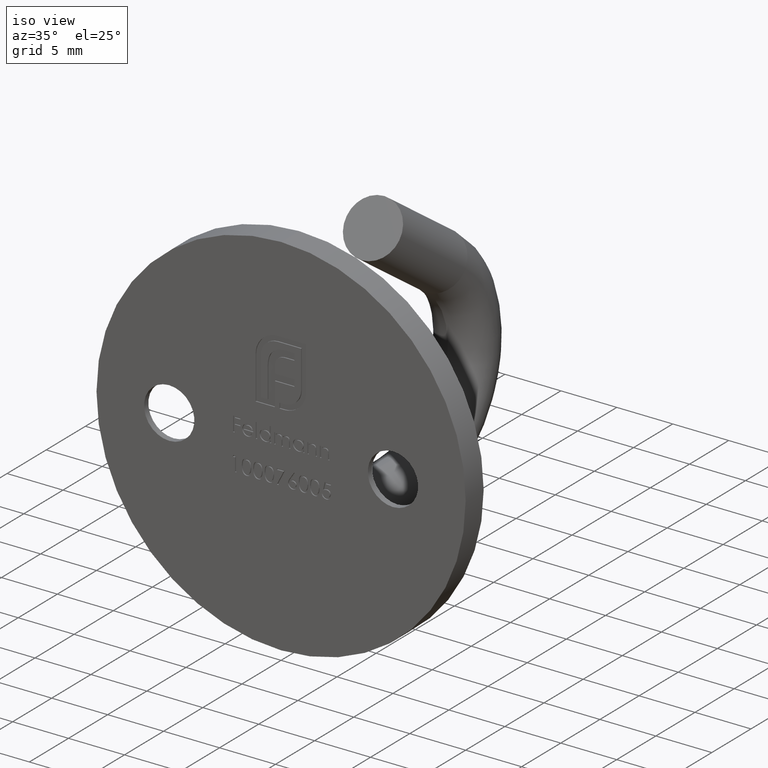
[diagram: clean part render]
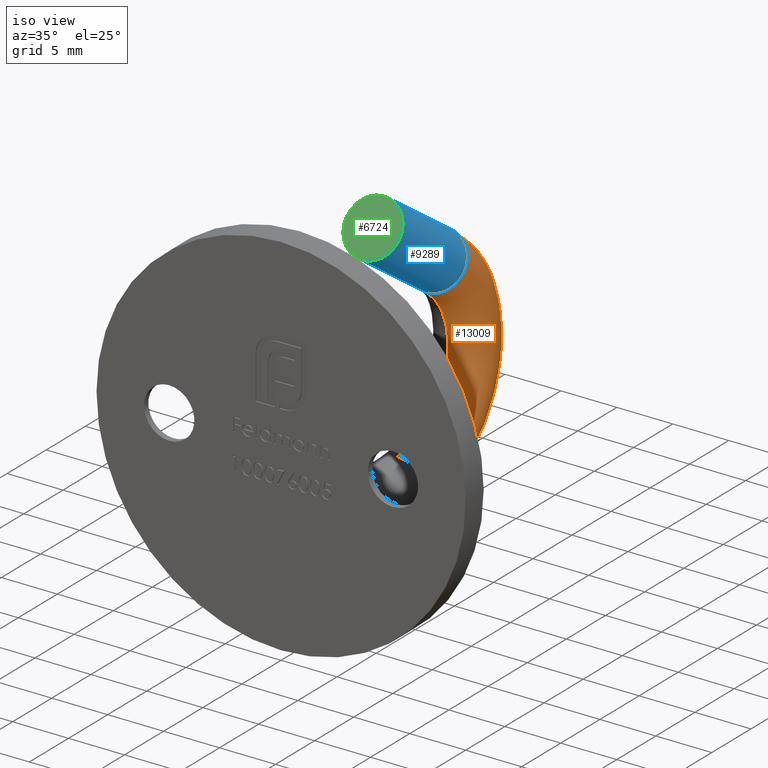
[diagram: same view with three faces highlighted in distinct colors, each labeled with its STEP entity id]
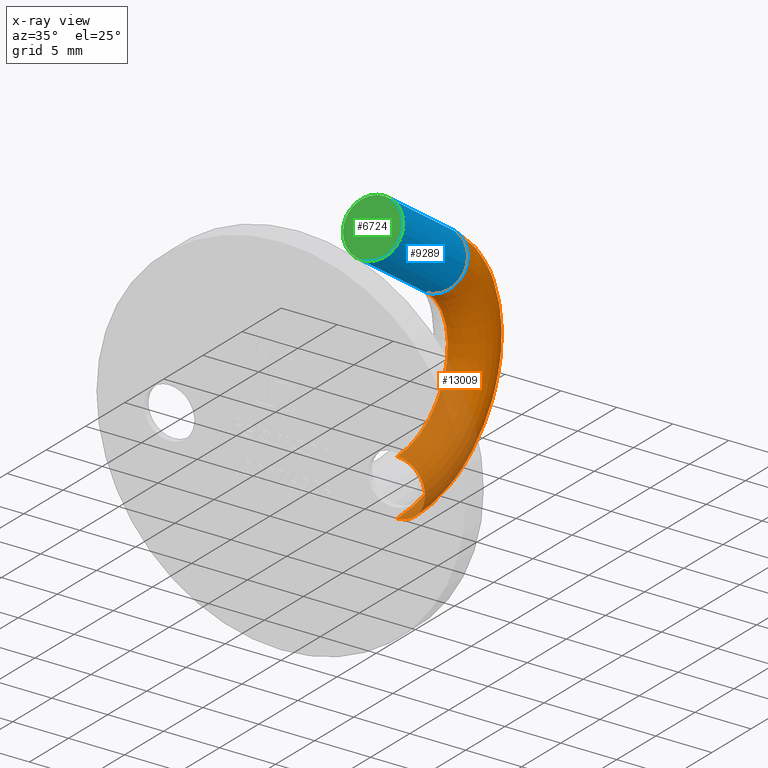
[diagram: x-ray of the same camera — body ghosted, the three highlighted faces saturated]
A machine part, iso view with three faces highlighted in distinct colors.
The next image is the same camera in x-ray (body ghosted, the three faces saturated) — at least one of them is partly hidden behind the body in this view.
Their STEP definitions:

[orange] entity #13009 — the highlighted toroidal blend (fillet) surface has major radius 9 mm and minor (blend) radius 2.5 mm.
#625 = DIRECTION ( 'NONE',  ( 0.000000000000000000, 0.000000000000000000, -1.000000000000000000 ) ) ;
#885 = EDGE_LOOP ( 'NONE', ( #11431, #13315, #15260, #1394 ) ) ;
#1394 = ORIENTED_EDGE ( 'NONE', *, *, #10019, .F. ) ;
#1436 = EDGE_CURVE ( 'NONE', #13294, #2883, #4112, .T. ) ;
#1460 = EDGE_CURVE ( 'NONE', #2883, #8685, #4466, .T. ) ;
#1639 = DIRECTION ( 'NONE',  ( 1.000000000000000000, 0.000000000000000000, 0.000000000000000000 ) ) ;
#2028 = CARTESIAN_POINT ( 'NONE',  ( 3.061616997868383634E-16, 21.39612901803698364, 9.420248509323439379 ) ) ;
#2356 = CARTESIAN_POINT ( 'NONE',  ( 0.000000000000000000, 18.52824683628177382, 5.324488287878466508 ) ) ;
#2377 = DIRECTION ( 'NONE',  ( 1.000000000000000000, 0.000000000000000000, 0.000000000000000000 ) ) ;
#2883 = VERTEX_POINT ( 'NONE', #2028 ) ;
#3658 = AXIS2_PLACEMENT_3D ( 'NONE', #11052, #12047, #4837 ) ;
#3703 = DIRECTION ( 'NONE',  ( 0.000000000000000000, 0.000000000000000000, -1.000000000000000000 ) ) ;
#4112 = CIRCLE ( 'NONE', #11848, 11.50000000000000178 ) ;
#4466 = CIRCLE ( 'NONE', #4838, 2.500000000000000444 ) ;
#4837 = DIRECTION ( 'NONE',  ( 0.000000000000000000, 0.000000000000000000, -1.000000000000000000 ) ) ;
#4838 = AXIS2_PLACEMENT_3D ( 'NONE', #11531, #6608, #9025 ) ;
#5352 = CARTESIAN_POINT ( 'NONE',  ( 0.000000000000000000, 14.80000000000000249, 0.000000000000000000 ) ) ;
#5920 = DIRECTION ( 'NONE',  ( 0.000000000000000000, 0.000000000000000000, -1.000000000000000000 ) ) ;
#6229 = CIRCLE ( 'NONE', #3658, 2.500000000000000444 ) ;
#6608 = DIRECTION ( 'NONE',  ( 0.000000000000000000, 0.8191520442889949072, -0.5735764363510416075 ) ) ;
#7311 = CARTESIAN_POINT ( 'NONE',  ( 0.000000000000000000, 14.80000000000000249, 0.000000000000000000 ) ) ;
#7434 = AXIS2_PLACEMENT_3D ( 'NONE', #10633, #14301, #5920 ) ;
#7576 = EDGE_CURVE ( 'NONE', #13294, #10944, #6229, .T. ) ;
#8161 = FACE_OUTER_BOUND ( 'NONE', #885, .T. ) ;
#8643 = CARTESIAN_POINT ( 'NONE',  ( 3.061616997868383634E-16, 14.80000000000000071, -6.500000000000000888 ) ) ;
#8685 = VERTEX_POINT ( 'NONE', #2356 ) ;
#9025 = DIRECTION ( 'NONE',  ( 0.000000000000000000, 0.5735764363510419406, 0.8191520442889945741 ) ) ;
#10019 = EDGE_CURVE ( 'NONE', #10944, #8685, #15651, .T. ) ;
#10633 = CARTESIAN_POINT ( 'NONE',  ( -3.061616997868383634E-16, 14.80000000000000249, 0.000000000000000000 ) ) ;
#10944 = VERTEX_POINT ( 'NONE', #8643 ) ;
#11052 = CARTESIAN_POINT ( 'NONE',  ( 0.000000000000000000, 14.80000000000000071, -9.000000000000001776 ) ) ;
#11431 = ORIENTED_EDGE ( 'NONE', *, *, #7576, .F. ) ;
#11531 = CARTESIAN_POINT ( 'NONE',  ( 0.000000000000000000, 19.96218792715938051, 7.372368398600952943 ) ) ;
#11848 = AXIS2_PLACEMENT_3D ( 'NONE', #5352, #1639, #625 ) ;
#11896 = AXIS2_PLACEMENT_3D ( 'NONE', #7311, #2377, #3703 ) ;
#12047 = DIRECTION ( 'NONE',  ( 0.000000000000000000, -1.000000000000000000, 0.000000000000000000 ) ) ;
#12924 = CARTESIAN_POINT ( 'NONE',  ( 0.000000000000000000, 14.80000000000000071, -11.50000000000000178 ) ) ;
#13009 = ADVANCED_FACE ( 'NONE', ( #8161 ), #13512, .T. ) ;
#13294 = VERTEX_POINT ( 'NONE', #12924 ) ;
#13315 = ORIENTED_EDGE ( 'NONE', *, *, #1436, .T. ) ;
#13512 = TOROIDAL_SURFACE ( 'NONE', #11896, 9.000000000000001776, 2.500000000000000444 ) ;
#14301 = DIRECTION ( 'NONE',  ( 1.000000000000000000, 0.000000000000000000, 0.000000000000000000 ) ) ;
#15260 = ORIENTED_EDGE ( 'NONE', *, *, #1460, .T. ) ;
#15651 = CIRCLE ( 'NONE', #7434, 6.500000000000000888 ) ;

[blue] entity #9289 — the highlighted cylindrical surface (edge-blend (fillet) strip) has radius 2.5 mm, axis along (0, -0.8192, 0.5736).
#137 = EDGE_LOOP ( 'NONE', ( #4645, #11299, #14960, #1857 ) ) ;
#347 = DIRECTION ( 'NONE',  ( 0.000000000000000000, -0.5735764363510407193, -0.8191520442889955733 ) ) ;
#499 = EDGE_CURVE ( 'NONE', #2883, #1597, #13985, .T. ) ;
#927 = CARTESIAN_POINT ( 'NONE',  ( 0.000000000000000000, 11.73394109087759318, 13.13384885961558446 ) ) ;
#1460 = EDGE_CURVE ( 'NONE', #2883, #8685, #4466, .T. ) ;
#1556 = AXIS2_PLACEMENT_3D ( 'NONE', #1615, #13754, #347 ) ;
#1597 = VERTEX_POINT ( 'NONE', #2035 ) ;
#1615 = CARTESIAN_POINT ( 'NONE',  ( 0.000000000000000000, 19.96218792715938051, 7.372368398600952943 ) ) ;
#1857 = ORIENTED_EDGE ( 'NONE', *, *, #7664, .F. ) ;
#2028 = CARTESIAN_POINT ( 'NONE',  ( 3.061616997868383634E-16, 21.39612901803698364, 9.420248509323439379 ) ) ;
#2035 = CARTESIAN_POINT ( 'NONE',  ( 3.061616997868383634E-16, 13.16788218175519631, 15.18172897033807089 ) ) ;
#2038 = DIRECTION ( 'NONE',  ( 0.000000000000000000, 0.5735764363510411634, 0.8191520442889951292 ) ) ;
#2356 = CARTESIAN_POINT ( 'NONE',  ( 0.000000000000000000, 18.52824683628177382, 5.324488287878466508 ) ) ;
#2687 = AXIS2_PLACEMENT_3D ( 'NONE', #927, #5697, #2038 ) ;
#2883 = VERTEX_POINT ( 'NONE', #2028 ) ;
#4466 = CIRCLE ( 'NONE', #4838, 2.500000000000000444 ) ;
#4497 = VECTOR ( 'NONE', #5229, 1000.000000000000227 ) ;
#4645 = ORIENTED_EDGE ( 'NONE', *, *, #1460, .F. ) ;
#4838 = AXIS2_PLACEMENT_3D ( 'NONE', #11531, #6608, #9025 ) ;
#5229 = DIRECTION ( 'NONE',  ( 0.000000000000000000, -0.8191520442889952403, 0.5735764363510411634 ) ) ;
#5306 = CARTESIAN_POINT ( 'NONE',  ( 0.000000000000000000, 10.29999999999998828, 11.08596874889309625 ) ) ;
#5697 = DIRECTION ( 'NONE',  ( 0.000000000000000000, 0.8191520442889949072, -0.5735764363510416075 ) ) ;
#6604 = VECTOR ( 'NONE', #8333, 1000.000000000000227 ) ;
#6608 = DIRECTION ( 'NONE',  ( 0.000000000000000000, 0.8191520442889949072, -0.5735764363510416075 ) ) ;
#7450 = CARTESIAN_POINT ( 'NONE',  ( 0.000000000000000000, 18.52824683628177738, 5.324488287878464732 ) ) ;
#7664 = EDGE_CURVE ( 'NONE', #8685, #8525, #11519, .T. ) ;
#8280 = FACE_OUTER_BOUND ( 'NONE', #137, .T. ) ;
#8333 = DIRECTION ( 'NONE',  ( 0.000000000000000000, -0.8191520442889952403, 0.5735764363510411634 ) ) ;
#8525 = VERTEX_POINT ( 'NONE', #5306 ) ;
#8685 = VERTEX_POINT ( 'NONE', #2356 ) ;
#9025 = DIRECTION ( 'NONE',  ( 0.000000000000000000, 0.5735764363510419406, 0.8191520442889945741 ) ) ;
#9289 = ADVANCED_FACE ( 'NONE', ( #8280 ), #12852, .T. ) ;
#11299 = ORIENTED_EDGE ( 'NONE', *, *, #499, .T. ) ;
#11519 = LINE ( 'NONE', #7450, #4497 ) ;
#11531 = CARTESIAN_POINT ( 'NONE',  ( 0.000000000000000000, 19.96218792715938051, 7.372368398600952943 ) ) ;
#12467 = EDGE_CURVE ( 'NONE', #1597, #8525, #13882, .T. ) ;
#12852 = CYLINDRICAL_SURFACE ( 'NONE', #1556, 2.499999999999999556 ) ;
#13348 = CARTESIAN_POINT ( 'NONE',  ( 3.061616997868383634E-16, 21.39612901803698009, 9.420248509323441155 ) ) ;
#13754 = DIRECTION ( 'NONE',  ( 0.000000000000000000, -0.8191520442889951292, 0.5735764363510411634 ) ) ;
#13882 = CIRCLE ( 'NONE', #2687, 2.500000000000000888 ) ;
#13985 = LINE ( 'NONE', #13348, #6604 ) ;
#14960 = ORIENTED_EDGE ( 'NONE', *, *, #12467, .T. ) ;

[green] entity #6724 — the highlighted planar face has unit normal (0, 0.8192, -0.5736).
#927 = CARTESIAN_POINT ( 'NONE',  ( 0.000000000000000000, 11.73394109087759318, 13.13384885961558446 ) ) ;
#1597 = VERTEX_POINT ( 'NONE', #2035 ) ;
#2035 = CARTESIAN_POINT ( 'NONE',  ( 3.061616997868383634E-16, 13.16788218175519631, 15.18172897033807089 ) ) ;
#2038 = DIRECTION ( 'NONE',  ( 0.000000000000000000, 0.5735764363510411634, 0.8191520442889951292 ) ) ;
#2069 = ORIENTED_EDGE ( 'NONE', *, *, #2398, .F. ) ;
#2316 = AXIS2_PLACEMENT_3D ( 'NONE', #4203, #6520, #10144 ) ;
#2398 = EDGE_CURVE ( 'NONE', #8525, #1597, #15463, .T. ) ;
#2429 = CARTESIAN_POINT ( 'NONE',  ( 0.000000000000000000, 11.73394109087759318, 13.13384885961558446 ) ) ;
#2490 = DIRECTION ( 'NONE',  ( 0.000000000000000000, 0.8191520442889949072, -0.5735764363510416075 ) ) ;
#2687 = AXIS2_PLACEMENT_3D ( 'NONE', #927, #5697, #2038 ) ;
#4203 = CARTESIAN_POINT ( 'NONE',  ( 0.000000000000000000, 11.73394109087759318, 13.13384885961558446 ) ) ;
#5306 = CARTESIAN_POINT ( 'NONE',  ( 0.000000000000000000, 10.29999999999998828, 11.08596874889309625 ) ) ;
#5697 = DIRECTION ( 'NONE',  ( 0.000000000000000000, 0.8191520442889949072, -0.5735764363510416075 ) ) ;
#6520 = DIRECTION ( 'NONE',  ( 0.000000000000000000, 0.8191520442889949072, -0.5735764363510416075 ) ) ;
#6724 = ADVANCED_FACE ( 'NONE', ( #12676 ), #14620, .F. ) ;
#8525 = VERTEX_POINT ( 'NONE', #5306 ) ;
#10144 = DIRECTION ( 'NONE',  ( 0.000000000000000000, 0.5735764363510411634, 0.8191520442889951292 ) ) ;
#10331 = AXIS2_PLACEMENT_3D ( 'NONE', #2429, #2490, #10905 ) ;
#10905 = DIRECTION ( 'NONE',  ( 0.000000000000000000, 0.5735764363510416075, 0.8191520442889949072 ) ) ;
#12467 = EDGE_CURVE ( 'NONE', #1597, #8525, #13882, .T. ) ;
#12676 = FACE_OUTER_BOUND ( 'NONE', #14017, .T. ) ;
#13882 = CIRCLE ( 'NONE', #2687, 2.500000000000000888 ) ;
#14017 = EDGE_LOOP ( 'NONE', ( #2069, #14759 ) ) ;
#14620 = PLANE ( 'NONE',  #10331 ) ;
#14759 = ORIENTED_EDGE ( 'NONE', *, *, #12467, .F. ) ;
#15463 = CIRCLE ( 'NONE', #2316, 2.500000000000000888 ) ;